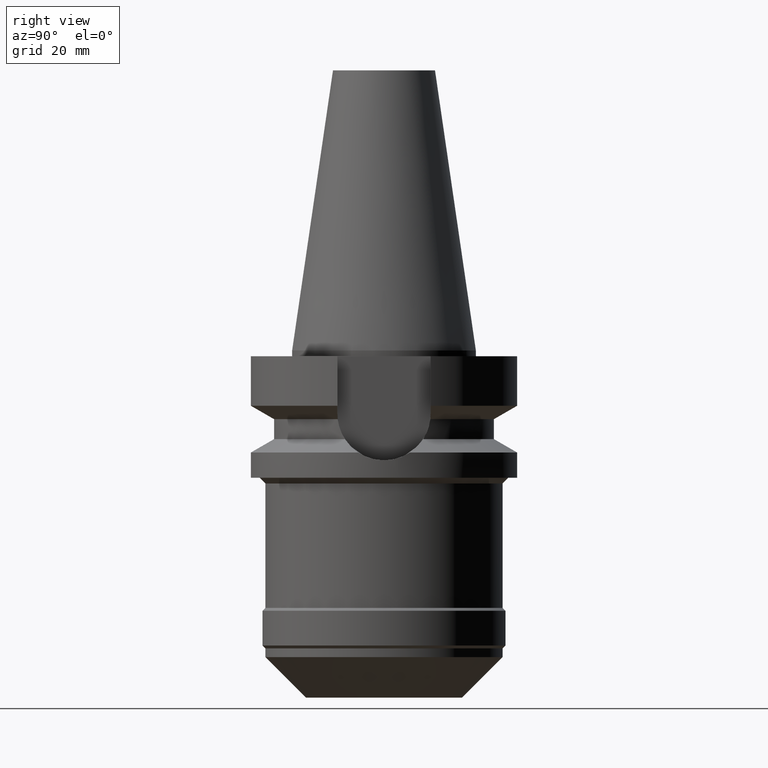
[diagram: clean part render]
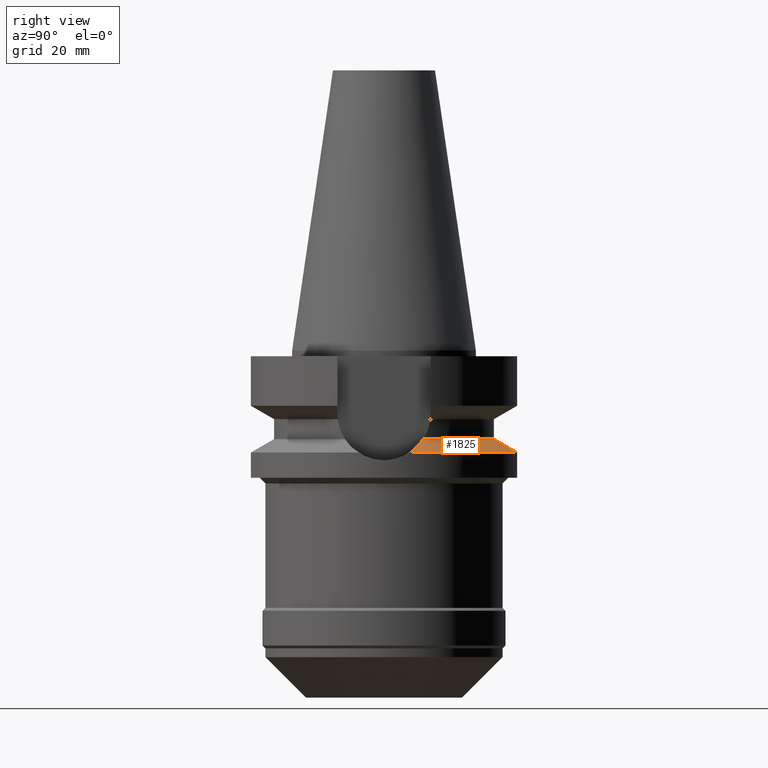
[diagram: same view with one face highlighted and labeled with its STEP entity id]
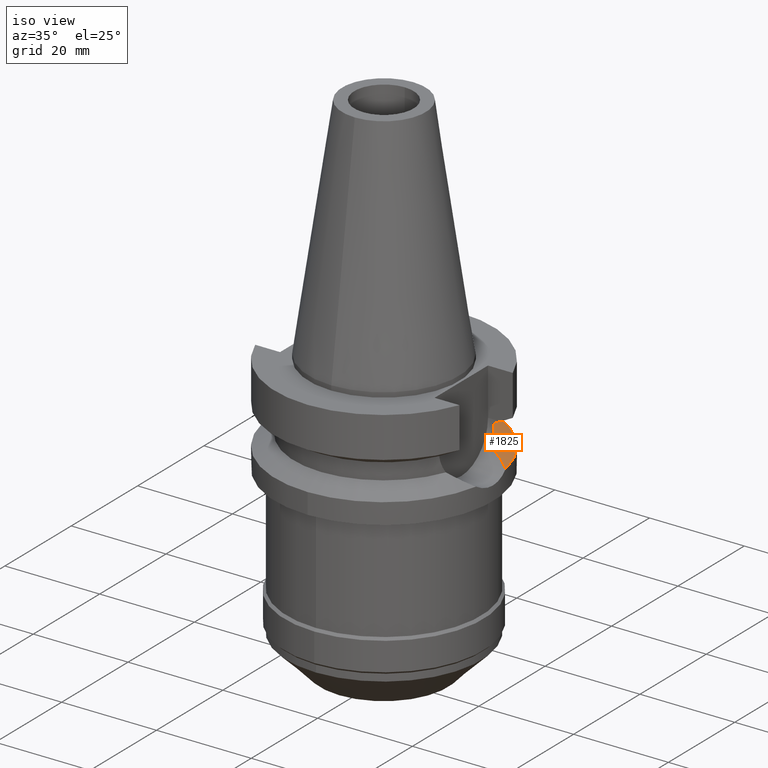
[diagram: same view with one face highlighted and labeled with its STEP entity id]
A machine part, right view. The second image highlights one B-rep face of the part: STEP entity #1825.
A second angle (iso view) of the same face is appended — the face is thin or edge-on in the first view.
In plain terms, the highlighted conical surface has half-angle 60 deg.
Its self-contained STEP definition (entity closure, byte-faithful):
#535=CARTESIAN_POINT('',(2.255786346208E1,4.488072640470E0,-1.763279163029E1));
#649=CARTESIAN_POINT('',(-1.775736593456E1,6.758398853744E0,-1.532339055353E1));
#650=CARTESIAN_POINT('',(-1.829477187559E1,6.592763856864E0,-1.557935382947E1));
#651=CARTESIAN_POINT('',(-1.929749276745E1,6.240874261661E0,-1.605904865665E1));
#652=CARTESIAN_POINT('',(-2.057958073012E1,5.677583709601E0,-1.667585630320E1));
#653=CARTESIAN_POINT('',(-2.166787979027E1,5.090950036049E0,-1.720152183086E1));
#654=CARTESIAN_POINT('',(-2.228018191924E1,4.688567704543E0,-1.749814185196E1));
#655=CARTESIAN_POINT('',(-2.255786346208E1,4.488072640470E0,-1.763279163029E1));
#660=CARTESIAN_POINT('',(0.E0,1.022848384030E-14,-1.763279163029E1));
#661=DIRECTION('',(0.E0,0.E0,-1.E0));
#662=DIRECTION('',(-9.807766722644E-1,1.951335930639E-1,0.E0));
#663=AXIS2_PLACEMENT_3D('',#660,#661,#662);
#668=CARTESIAN_POINT('',(0.E0,1.022848384030E-14,-1.763279163029E1));
#669=DIRECTION('',(0.E0,0.E0,-1.E0));
#670=DIRECTION('',(0.E0,1.E0,0.E0));
#671=AXIS2_PLACEMENT_3D('',#668,#669,#670);
#676=CARTESIAN_POINT('',(2.255786346208E1,4.488072640470E0,-1.763279163029E1));
#677=CARTESIAN_POINT('',(2.228018737492E1,4.688563765371E0,-1.749814449746E1));
#678=CARTESIAN_POINT('',(2.166789733162E1,5.090938446914E0,-1.720153033150E1));
#679=CARTESIAN_POINT('',(2.057963824814E1,5.677554815601E0,-1.667588405440E1));
#680=CARTESIAN_POINT('',(1.929755978935E1,6.240848791639E0,-1.605908079747E1));
#681=CARTESIAN_POINT('',(1.829480080725E1,6.592754939778E0,-1.557936760945E1));
#682=CARTESIAN_POINT('',(1.775736593456E1,6.758398853744E0,-1.532339055353E1));
#687=CARTESIAN_POINT('',(0.E0,1.022848384030E-14,-1.532339055353E1));
#688=DIRECTION('',(0.E0,0.E0,1.E0));
#689=DIRECTION('',(9.345982070819E-1,3.557052028286E-1,0.E0));
#690=AXIS2_PLACEMENT_3D('',#687,#688,#689);
#695=CARTESIAN_POINT('',(0.E0,1.022848384030E-14,-1.532339055353E1));
#696=DIRECTION('',(0.E0,0.E0,1.E0));
#697=DIRECTION('',(0.E0,1.E0,0.E0));
#698=AXIS2_PLACEMENT_3D('',#695,#696,#697);
#713=CARTESIAN_POINT('',(1.775736593456E1,6.758398853744E0,-1.532339055353E1));
#1160=VERTEX_POINT('',#535);
#1162=CARTESIAN_POINT('',(0.E0,2.3E1,-1.763279163029E1));
#1163=VERTEX_POINT('',#1162);
#1178=VERTEX_POINT('',#713);
#1183=VERTEX_POINT('',#649);
#1184=VERTEX_POINT('',#655);
#1185=CARTESIAN_POINT('',(0.E0,1.9E1,-1.532339055353E1));
#1186=VERTEX_POINT('',#1185);
#1810=CARTESIAN_POINT('',(0.E0,1.022848384030E-14,-1.647809109191E1));
#1811=DIRECTION('',(0.E0,0.E0,-1.E0));
#1812=DIRECTION('',(0.E0,-1.E0,0.E0));
#1813=AXIS2_PLACEMENT_3D('',#1810,#1811,#1812);
#1814=CONICAL_SURFACE('',#1813,2.1E1,6.E1);
#1815=ORIENTED_EDGE('',*,*,#1774,.T.);
#1816=ORIENTED_EDGE('',*,*,#1805,.T.);
#1817=ORIENTED_EDGE('',*,*,#1706,.T.);
#1818=ORIENTED_EDGE('',*,*,#1743,.T.);
#1820=ORIENTED_EDGE('',*,*,#1819,.T.);
#1822=ORIENTED_EDGE('',*,*,#1821,.T.);
#1823=EDGE_LOOP('',(#1815,#1816,#1817,#1818,#1820,#1822));
#1824=FACE_OUTER_BOUND('',#1823,.F.);
#656=B_SPLINE_CURVE_WITH_KNOTS('',3,(#649,#650,#651,#652,#653,#654,#655),
.UNSPECIFIED.,.F.,.F.,(4,1,1,1,4),(0.E0,2.5E-1,5.E-1,7.5E-1,1.E0),
.UNSPECIFIED.);
#664=CIRCLE('',#663,2.3E1);
#672=CIRCLE('',#671,2.3E1);
#683=B_SPLINE_CURVE_WITH_KNOTS('',3,(#676,#677,#678,#679,#680,#681,#682),
.UNSPECIFIED.,.F.,.F.,(4,1,1,1,4),(0.E0,2.5E-1,5.E-1,7.5E-1,1.E0),
.UNSPECIFIED.);
#691=CIRCLE('',#690,1.9E1);
#699=CIRCLE('',#698,1.9E1);
#1706=EDGE_CURVE('',#1163,#1160,#672,.T.);
#1743=EDGE_CURVE('',#1160,#1178,#683,.T.);
#1774=EDGE_CURVE('',#1183,#1184,#656,.T.);
#1805=EDGE_CURVE('',#1184,#1163,#664,.T.);
#1819=EDGE_CURVE('',#1178,#1186,#691,.T.);
#1821=EDGE_CURVE('',#1186,#1183,#699,.T.);
#1825=ADVANCED_FACE('',(#1824),#1814,.T.);